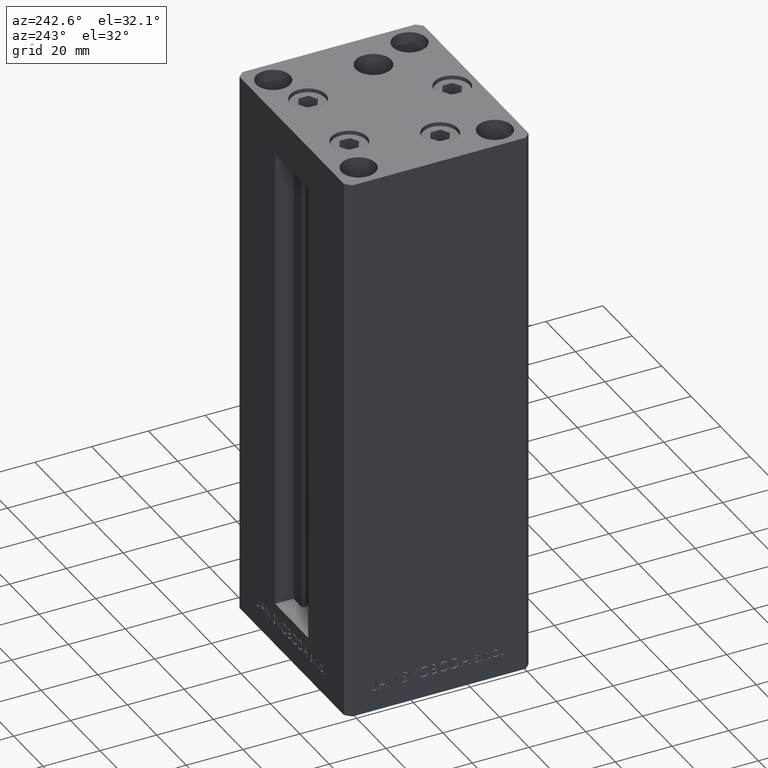
[diagram: clean part render]
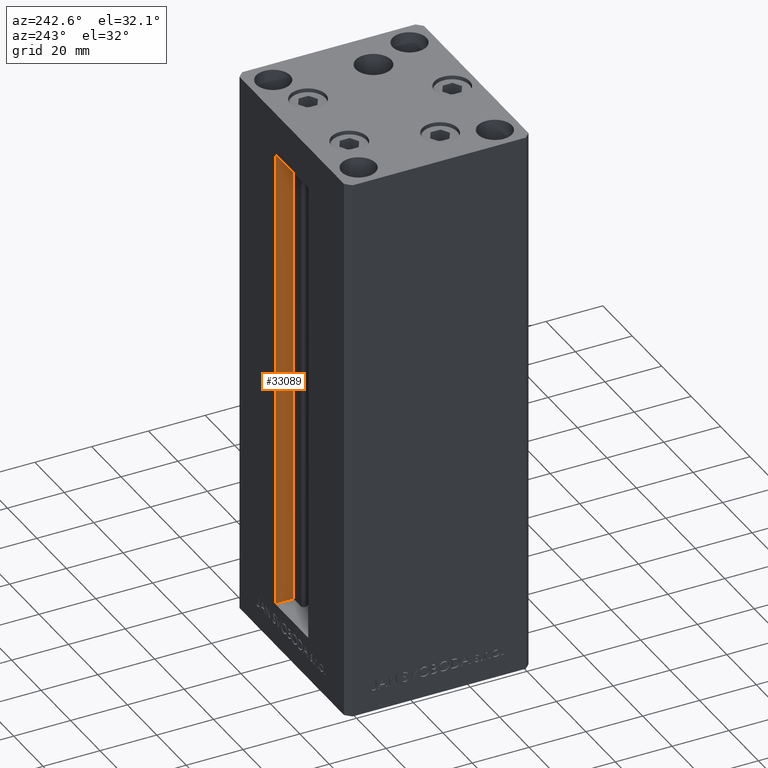
[diagram: same view with one face highlighted and labeled with its STEP entity id]
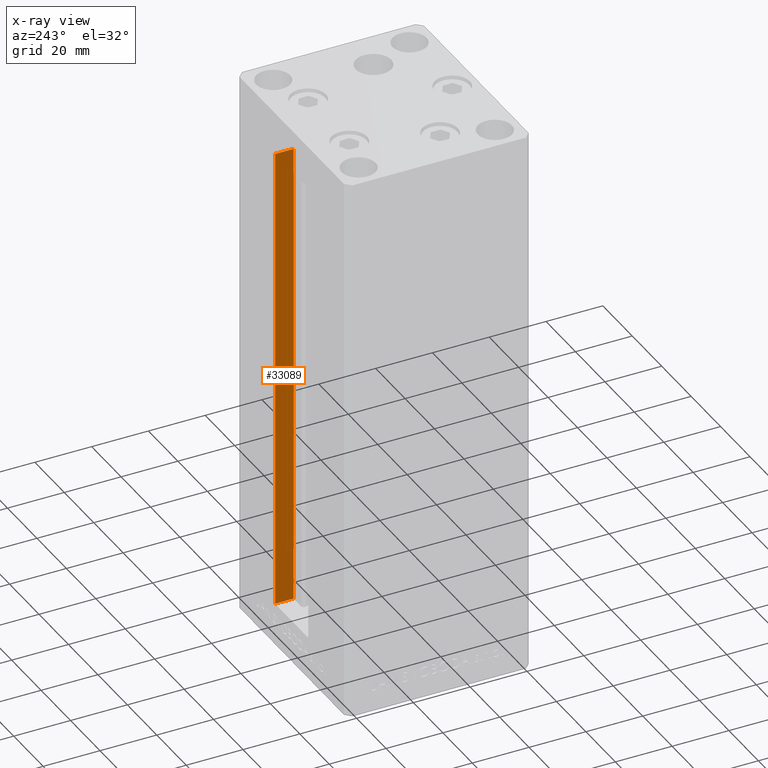
[diagram: x-ray of the same camera — body ghosted, the highlighted face saturated]
A machine part, auxiliary view. The second image highlights one B-rep face of the part: STEP entity #33089.
The next image is the same camera in x-ray: the body ghosted, the highlighted face saturated — about 0% of this face is hidden behind the body in this view.
In plain terms, the highlighted planar face has unit normal (1, 0, 0).
Its self-contained STEP definition (entity closure, byte-faithful):
#468 = DIRECTION ( 'NONE',  ( -0.000000000000000000, -0.000000000000000000, 1.000000000000000000 ) ) ;
#811 = EDGE_CURVE ( 'NONE', #20615, #28607, #1129, .T. ) ;
#1129 = LINE ( 'NONE', #27076, #40591 ) ;
#1552 = CARTESIAN_POINT ( 'NONE',  ( 11.25000000000000178, 25.99999999999999289, 0.000000000000000000 ) ) ;
#6607 = ORIENTED_EDGE ( 'NONE', *, *, #811, .F. ) ;
#7581 = EDGE_CURVE ( 'NONE', #34007, #31252, #46203, .T. ) ;
#8844 = EDGE_CURVE ( 'NONE', #31252, #20615, #19442, .T. ) ;
#9240 = ORIENTED_EDGE ( 'NONE', *, *, #7581, .F. ) ;
#9891 = DIRECTION ( 'NONE',  ( -0.000000000000000000, -0.000000000000000000, 1.000000000000000000 ) ) ;
#16095 = VECTOR ( 'NONE', #9891, 1000.000000000000000 ) ;
#16342 = DIRECTION ( 'NONE',  ( -0.000000000000000000, -1.000000000000000000, 0.000000000000000000 ) ) ;
#17126 = CARTESIAN_POINT ( 'NONE',  ( 11.25000000000000178, 25.99999999999999289, 0.000000000000000000 ) ) ;
#17616 = CARTESIAN_POINT ( 'NONE',  ( 11.25000000000000178, 25.99999999999999289, 0.000000000000000000 ) ) ;
#18824 = VECTOR ( 'NONE', #468, 1000.000000000000000 ) ;
#19442 = LINE ( 'NONE', #34619, #18824 ) ;
#20575 = CARTESIAN_POINT ( 'NONE',  ( 11.25000000000000178, 32.49999999999999289, 0.000000000000000000 ) ) ;
#20615 = VERTEX_POINT ( 'NONE', #36067 ) ;
#22147 = AXIS2_PLACEMENT_3D ( 'NONE', #25131, #40334, #47344 ) ;
#24340 = CARTESIAN_POINT ( 'NONE',  ( 11.25000000000000178, 25.99999999999999289, 166.0000000000000000 ) ) ;
#25131 = CARTESIAN_POINT ( 'NONE',  ( 11.25000000000000178, 25.99999999999999289, 0.000000000000000000 ) ) ;
#25551 = ORIENTED_EDGE ( 'NONE', *, *, #46468, .T. ) ;
#27076 = CARTESIAN_POINT ( 'NONE',  ( 11.25000000000000178, 0.000000000000000000, 166.0000000000000000 ) ) ;
#28607 = VERTEX_POINT ( 'NONE', #24340 ) ;
#28885 = FACE_OUTER_BOUND ( 'NONE', #29812, .T. ) ;
#29812 = EDGE_LOOP ( 'NONE', ( #43433, #9240, #25551, #6607 ) ) ;
#31252 = VERTEX_POINT ( 'NONE', #20575 ) ;
#33089 = ADVANCED_FACE ( 'NONE', ( #28885 ), #44579, .F. ) ;
#33552 = LINE ( 'NONE', #17616, #16095 ) ;
#34007 = VERTEX_POINT ( 'NONE', #17126 ) ;
#34619 = CARTESIAN_POINT ( 'NONE',  ( 11.25000000000000178, 32.49999999999999289, 0.000000000000000000 ) ) ;
#35696 = DIRECTION ( 'NONE',  ( 0.000000000000000000, 1.000000000000000000, 0.000000000000000000 ) ) ;
#36067 = CARTESIAN_POINT ( 'NONE',  ( 11.24999999999999467, 32.49999999999999289, 166.0000000000000000 ) ) ;
#40334 = DIRECTION ( 'NONE',  ( 1.000000000000000000, -0.000000000000000000, 0.000000000000000000 ) ) ;
#40591 = VECTOR ( 'NONE', #16342, 1000.000000000000000 ) ;
#41093 = VECTOR ( 'NONE', #35696, 1000.000000000000000 ) ;
#43433 = ORIENTED_EDGE ( 'NONE', *, *, #8844, .F. ) ;
#44579 = PLANE ( 'NONE',  #22147 ) ;
#46203 = LINE ( 'NONE', #1552, #41093 ) ;
#46468 = EDGE_CURVE ( 'NONE', #34007, #28607, #33552, .T. ) ;
#47344 = DIRECTION ( 'NONE',  ( 0.000000000000000000, 0.000000000000000000, -1.000000000000000000 ) ) ;